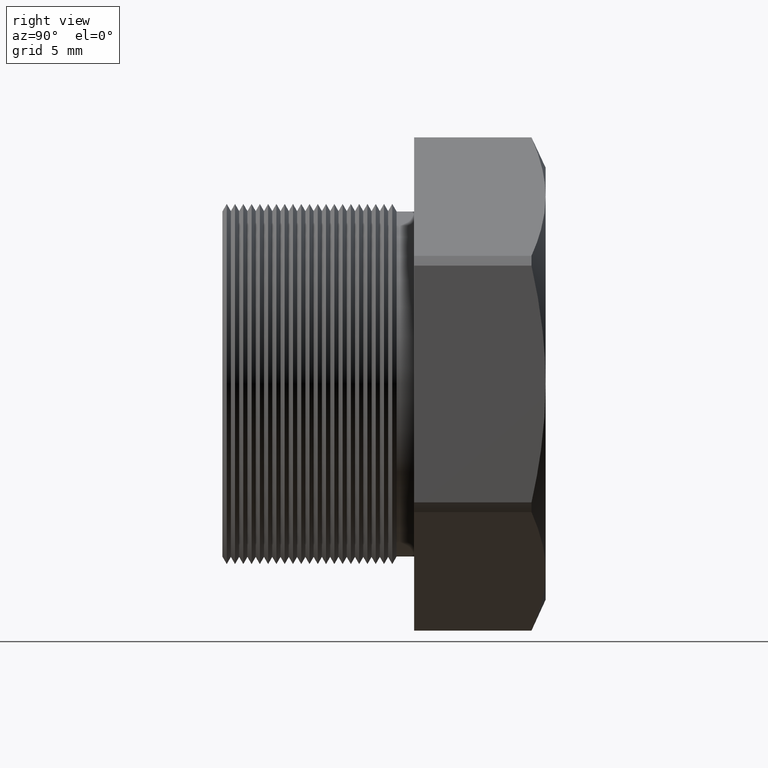
[diagram: clean part render]
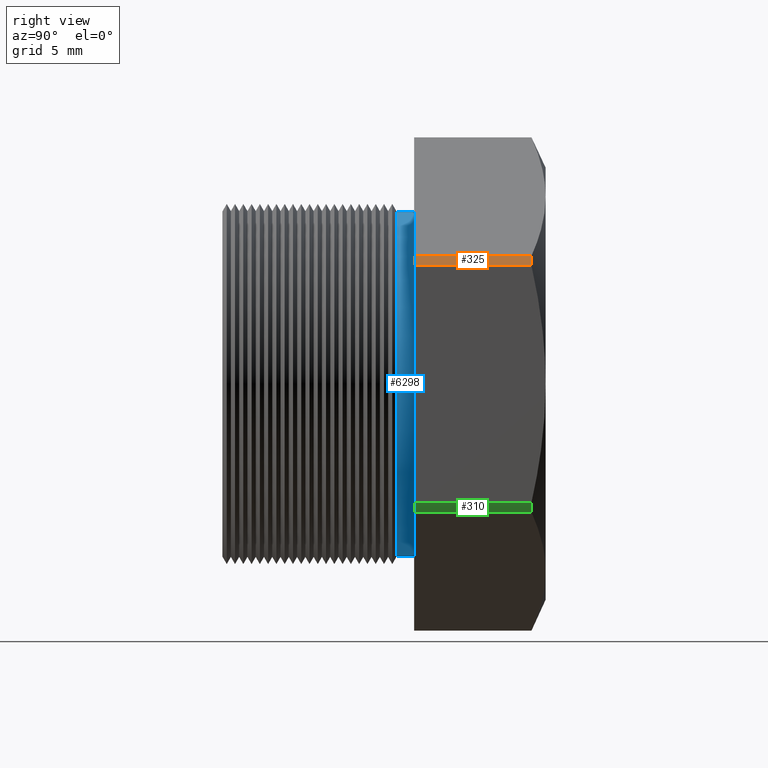
[diagram: same view with three faces highlighted in distinct colors, each labeled with its STEP entity id]
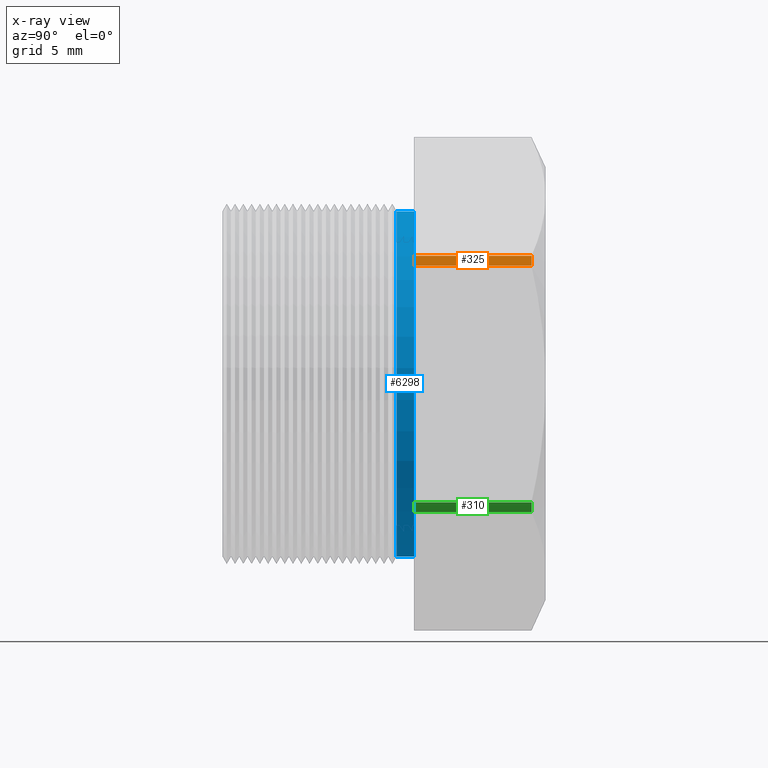
[diagram: x-ray of the same camera — body ghosted, the three highlighted faces saturated]
A machine part, right view with three faces highlighted in distinct colors.
The next image is the same camera in x-ray (body ghosted, the three faces saturated) — at least one of them is partly hidden behind the body in this view.
Their STEP definitions:

[orange] entity #325 — the highlighted cylindrical surface (partial cylindrical patch) has radius 11.4376 mm, axis along (-0, -1, -0).
#325 = ADVANCED_FACE ( 'NONE', ( #1819 ), #1818, .T. ) ;
#326 = EDGE_LOOP ( 'NONE', ( #384, #388, #391, #394 ) ) ;
#327 = VERTEX_POINT ( 'NONE', #1817 ) ;
#384 = ORIENTED_EDGE ( 'NONE', *, *, #386, .T. ) ;
#386 = EDGE_CURVE ( 'NONE', #327, #387, #1955, .T. ) ;
#387 = VERTEX_POINT ( 'NONE', #1951 ) ;
#388 = ORIENTED_EDGE ( 'NONE', *, *, #389, .T. ) ;
#389 = EDGE_CURVE ( 'NONE', #387, #390, #1950, .T. ) ;
#390 = VERTEX_POINT ( 'NONE', #1945 ) ;
#391 = ORIENTED_EDGE ( 'NONE', *, *, #392, .T. ) ;
#392 = EDGE_CURVE ( 'NONE', #390, #393, #1944, .T. ) ;
#393 = VERTEX_POINT ( 'NONE', #1940 ) ;
#394 = ORIENTED_EDGE ( 'NONE', *, *, #395, .F. ) ;
#395 = EDGE_CURVE ( 'NONE', #327, #393, #1939, .T. ) ;
#1813 = DIRECTION ( 'NONE',  ( 0.0000000000000000000, 0.0000000000000000000, -1.000000000000000000 ) ) ;
#1814 = DIRECTION ( 'NONE',  ( -0.0000000000000000000, -1.000000000000000000, -0.0000000000000000000 ) ) ;
#1815 = CARTESIAN_POINT ( 'NONE',  ( 0.0000000000000000000, 0.0000000000000000000, 0.0000000000000000000 ) ) ;
#1816 = AXIS2_PLACEMENT_3D ( 'NONE', #1815, #1814, #1813 ) ;
#1817 = CARTESIAN_POINT ( 'NONE',  ( 0.3949999999999999100, 0.1675548905829479500, 0.2162061284977834200 ) ) ;
#1818 = CYLINDRICAL_SURFACE ( 'NONE', #1816, 0.4502999999999999800 ) ;
#1819 = FACE_OUTER_BOUND ( 'NONE', #326, .T. ) ;
#1935 = DIRECTION ( 'NONE',  ( 0.0000000000000000000, 0.0000000000000000000, -1.000000000000000000 ) ) ;
#1936 = DIRECTION ( 'NONE',  ( -0.0000000000000000000, -1.000000000000000000, -0.0000000000000000000 ) ) ;
#1937 = CARTESIAN_POINT ( 'NONE',  ( 0.0000000000000000000, 0.1675548905829479500, 0.0000000000000000000 ) ) ;
#1938 = AXIS2_PLACEMENT_3D ( 'NONE', #1937, #1936, #1935 ) ;
#1939 = CIRCLE ( 'NONE', #1938, 0.4502999999999999800 ) ;
#1940 = CARTESIAN_POINT ( 'NONE',  ( 0.3847399997329628600, 0.1675548905829479500, 0.2339769702459617900 ) ) ;
#1941 = DIRECTION ( 'NONE',  ( -0.0000000000000000000, -1.000000000000000000, -0.0000000000000000000 ) ) ;
#1942 = VECTOR ( 'NONE', #1941, 39.37007874015748100 ) ;
#1943 = CARTESIAN_POINT ( 'NONE',  ( 0.3847399997329628000, 0.0000000000000000000, 0.2339769702459619500 ) ) ;
#1944 = LINE ( 'NONE', #1943, #1942 ) ;
#1945 = CARTESIAN_POINT ( 'NONE',  ( 0.3847399997329628600, 0.3817680770869766300, 0.2339769702459618700 ) ) ;
#1946 = DIRECTION ( 'NONE',  ( 0.0000000000000000000, 0.0000000000000000000, -1.000000000000000000 ) ) ;
#1947 = DIRECTION ( 'NONE',  ( 0.0000000000000000000, -1.000000000000000000, 0.0000000000000000000 ) ) ;
#1948 = CARTESIAN_POINT ( 'NONE',  ( 0.0000000000000000000, 0.3817680770869766300, 0.0000000000000000000 ) ) ;
#1949 = AXIS2_PLACEMENT_3D ( 'NONE', #1948, #1947, #1946 ) ;
#1950 = CIRCLE ( 'NONE', #1949, 0.4502999999999999800 ) ;
#1951 = CARTESIAN_POINT ( 'NONE',  ( 0.3949999999999999100, 0.3817680770869766300, 0.2162061284977834200 ) ) ;
#1952 = DIRECTION ( 'NONE',  ( 0.0000000000000000000, 1.000000000000000000, 0.0000000000000000000 ) ) ;
#1953 = VECTOR ( 'NONE', #1952, 39.37007874015748100 ) ;
#1954 = CARTESIAN_POINT ( 'NONE',  ( 0.3949999999999999100, 0.0000000000000000000, 0.2162061284977834200 ) ) ;
#1955 = LINE ( 'NONE', #1954, #1953 ) ;

[blue] entity #6298 — the highlighted cylindrical surface (partial cylindrical patch) has radius 8.001 mm, axis along (-0, -1, -0).
#4838 = CARTESIAN_POINT ( 'NONE',  ( 0.0000000000000000000, 0.1355072448100088900, -0.3150000000000000000 ) ) ;
#4839 = DIRECTION ( 'NONE',  ( 0.0000000000000000000, 0.0000000000000000000, -1.000000000000000000 ) ) ;
#4840 = DIRECTION ( 'NONE',  ( 0.0000000000000000000, -1.000000000000000000, 0.0000000000000000000 ) ) ;
#4841 = CARTESIAN_POINT ( 'NONE',  ( 0.0000000000000000000, 0.1355072448100088900, 0.0000000000000000000 ) ) ;
#4842 = AXIS2_PLACEMENT_3D ( 'NONE', #4841, #4840, #4839 ) ;
#4843 = CIRCLE ( 'NONE', #4842, 0.3150000000000000000 ) ;
#4847 = CARTESIAN_POINT ( 'NONE',  ( 3.857637417314162700E-017, 0.1355072448100088900, 0.3150000000000000000 ) ) ;
#4848 = CARTESIAN_POINT ( 'NONE',  ( 0.0000000000000000000, 0.0000000000000000000, 0.0000000000000000000 ) ) ;
#4849 = AXIS2_PLACEMENT_3D ( 'NONE', #4848, #4910, #4909 ) ;
#4850 = CYLINDRICAL_SURFACE ( 'NONE', #4849, 0.3150000000000000000 ) ;
#4851 = FACE_OUTER_BOUND ( 'NONE', #6294, .T. ) ;
#4852 = DIRECTION ( 'NONE',  ( 0.0000000000000000000, 0.0000000000000000000, -1.000000000000000000 ) ) ;
#4853 = DIRECTION ( 'NONE',  ( -0.0000000000000000000, -1.000000000000000000, -0.0000000000000000000 ) ) ;
#4854 = CARTESIAN_POINT ( 'NONE',  ( 0.0000000000000000000, 0.1675548905829479500, 0.0000000000000000000 ) ) ;
#4855 = AXIS2_PLACEMENT_3D ( 'NONE', #4854, #4853, #4852 ) ;
#4856 = CIRCLE ( 'NONE', #4855, 0.3150000000000000000 ) ;
#4863 = CARTESIAN_POINT ( 'NONE',  ( 0.0000000000000000000, 0.1675548905829479500, -0.3150000000000000000 ) ) ;
#4874 = CARTESIAN_POINT ( 'NONE',  ( 3.857637417314162700E-017, 0.1675548905829479500, 0.3150000000000000000 ) ) ;
#4875 = DIRECTION ( 'NONE',  ( -0.0000000000000000000, -1.000000000000000000, -0.0000000000000000000 ) ) ;
#4876 = VECTOR ( 'NONE', #4875, 39.37007874015748100 ) ;
#4877 = CARTESIAN_POINT ( 'NONE',  ( 3.857637417314162700E-017, 0.0000000000000000000, 0.3150000000000000000 ) ) ;
#4878 = LINE ( 'NONE', #4877, #4876 ) ;
#4909 = DIRECTION ( 'NONE',  ( 0.0000000000000000000, 0.0000000000000000000, -1.000000000000000000 ) ) ;
#4910 = DIRECTION ( 'NONE',  ( -0.0000000000000000000, -1.000000000000000000, -0.0000000000000000000 ) ) ;
#4957 = DIRECTION ( 'NONE',  ( -0.0000000000000000000, -1.000000000000000000, -0.0000000000000000000 ) ) ;
#4958 = VECTOR ( 'NONE', #4957, 39.37007874015748100 ) ;
#4959 = CARTESIAN_POINT ( 'NONE',  ( 0.0000000000000000000, 0.0000000000000000000, -0.3150000000000000000 ) ) ;
#4960 = LINE ( 'NONE', #4959, #4958 ) ;
#6264 = VERTEX_POINT ( 'NONE', #4847 ) ;
#6265 = EDGE_CURVE ( 'NONE', #6268, #6264, #4843, .T. ) ;
#6268 = VERTEX_POINT ( 'NONE', #4838 ) ;
#6282 = EDGE_CURVE ( 'NONE', #6285, #6264, #4878, .T. ) ;
#6285 = VERTEX_POINT ( 'NONE', #4874 ) ;
#6286 = ORIENTED_EDGE ( 'NONE', *, *, #6282, .T. ) ;
#6291 = VERTEX_POINT ( 'NONE', #4863 ) ;
#6294 = EDGE_LOOP ( 'NONE', ( #6295, #6286, #6343, #6342 ) ) ;
#6295 = ORIENTED_EDGE ( 'NONE', *, *, #6297, .T. ) ;
#6297 = EDGE_CURVE ( 'NONE', #6291, #6285, #4856, .T. ) ;
#6298 = ADVANCED_FACE ( 'NONE', ( #4851 ), #4850, .T. ) ;
#6338 = EDGE_CURVE ( 'NONE', #6291, #6268, #4960, .T. ) ;
#6342 = ORIENTED_EDGE ( 'NONE', *, *, #6338, .F. ) ;
#6343 = ORIENTED_EDGE ( 'NONE', *, *, #6265, .F. ) ;

[green] entity #310 — the highlighted cylindrical surface (partial cylindrical patch) has radius 11.4376 mm, axis along (-0, -1, -0).
#310 = ADVANCED_FACE ( 'NONE', ( #1789 ), #1787, .T. ) ;
#311 = EDGE_LOOP ( 'NONE', ( #312, #371, #374, #377 ) ) ;
#312 = ORIENTED_EDGE ( 'NONE', *, *, #6222, .T. ) ;
#369 = VERTEX_POINT ( 'NONE', #1921 ) ;
#370 = VERTEX_POINT ( 'NONE', #1920 ) ;
#371 = ORIENTED_EDGE ( 'NONE', *, *, #372, .T. ) ;
#372 = EDGE_CURVE ( 'NONE', #370, #373, #1919, .T. ) ;
#373 = VERTEX_POINT ( 'NONE', #1914 ) ;
#374 = ORIENTED_EDGE ( 'NONE', *, *, #375, .T. ) ;
#375 = EDGE_CURVE ( 'NONE', #373, #376, #1913, .T. ) ;
#376 = VERTEX_POINT ( 'NONE', #1909 ) ;
#377 = ORIENTED_EDGE ( 'NONE', *, *, #378, .F. ) ;
#378 = EDGE_CURVE ( 'NONE', #369, #376, #1908, .T. ) ;
#1783 = DIRECTION ( 'NONE',  ( 0.0000000000000000000, 0.0000000000000000000, -1.000000000000000000 ) ) ;
#1784 = DIRECTION ( 'NONE',  ( -0.0000000000000000000, -1.000000000000000000, -0.0000000000000000000 ) ) ;
#1785 = CARTESIAN_POINT ( 'NONE',  ( 0.0000000000000000000, 0.0000000000000000000, 0.0000000000000000000 ) ) ;
#1786 = AXIS2_PLACEMENT_3D ( 'NONE', #1785, #1784, #1783 ) ;
#1787 = CYLINDRICAL_SURFACE ( 'NONE', #1786, 0.4502999999999999800 ) ;
#1789 = FACE_OUTER_BOUND ( 'NONE', #311, .T. ) ;
#1904 = DIRECTION ( 'NONE',  ( 0.0000000000000000000, 0.0000000000000000000, -1.000000000000000000 ) ) ;
#1905 = DIRECTION ( 'NONE',  ( -0.0000000000000000000, -1.000000000000000000, -0.0000000000000000000 ) ) ;
#1906 = CARTESIAN_POINT ( 'NONE',  ( 0.0000000000000000000, 0.1675548905829479500, 0.0000000000000000000 ) ) ;
#1907 = AXIS2_PLACEMENT_3D ( 'NONE', #1906, #1905, #1904 ) ;
#1908 = CIRCLE ( 'NONE', #1907, 0.4502999999999999800 ) ;
#1909 = CARTESIAN_POINT ( 'NONE',  ( 0.3950000000000000200, 0.1675548905829479500, -0.2162061284977832000 ) ) ;
#1910 = DIRECTION ( 'NONE',  ( -0.0000000000000000000, -1.000000000000000000, -0.0000000000000000000 ) ) ;
#1911 = VECTOR ( 'NONE', #1910, 39.37007874015748100 ) ;
#1912 = CARTESIAN_POINT ( 'NONE',  ( 0.3950000000000000200, 0.0000000000000000000, -0.2162061284977832000 ) ) ;
#1913 = LINE ( 'NONE', #1912, #1911 ) ;
#1914 = CARTESIAN_POINT ( 'NONE',  ( 0.3950000000000000200, 0.3817680770869807900, -0.2162061284977874500 ) ) ;
#1915 = DIRECTION ( 'NONE',  ( 0.0000000000000000000, 0.0000000000000000000, -1.000000000000000000 ) ) ;
#1916 = DIRECTION ( 'NONE',  ( 0.0000000000000000000, -1.000000000000000000, 0.0000000000000000000 ) ) ;
#1917 = CARTESIAN_POINT ( 'NONE',  ( 0.0000000000000000000, 0.3817680770869766300, 0.0000000000000000000 ) ) ;
#1918 = AXIS2_PLACEMENT_3D ( 'NONE', #1917, #1916, #1915 ) ;
#1919 = CIRCLE ( 'NONE', #1918, 0.4502999999999999800 ) ;
#1920 = CARTESIAN_POINT ( 'NONE',  ( 0.3847399997329629100, 0.3817680770869766300, -0.2339769702459618100 ) ) ;
#1921 = CARTESIAN_POINT ( 'NONE',  ( 0.3847399997329628000, 0.1675548905829479500, -0.2339769702459620100 ) ) ;
#4737 = DIRECTION ( 'NONE',  ( 0.0000000000000000000, 1.000000000000000000, 0.0000000000000000000 ) ) ;
#4738 = VECTOR ( 'NONE', #4737, 39.37007874015748100 ) ;
#4739 = CARTESIAN_POINT ( 'NONE',  ( 0.3847399997329629100, 0.0000000000000000000, -0.2339769702459618100 ) ) ;
#4740 = LINE ( 'NONE', #4739, #4738 ) ;
#6222 = EDGE_CURVE ( 'NONE', #369, #370, #4740, .T. ) ;